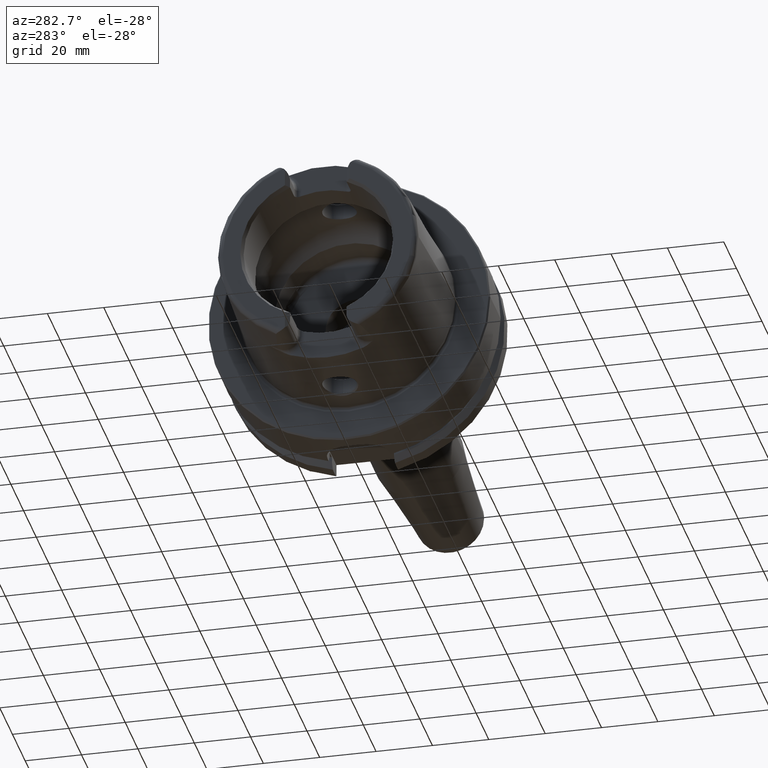
[diagram: clean part render]
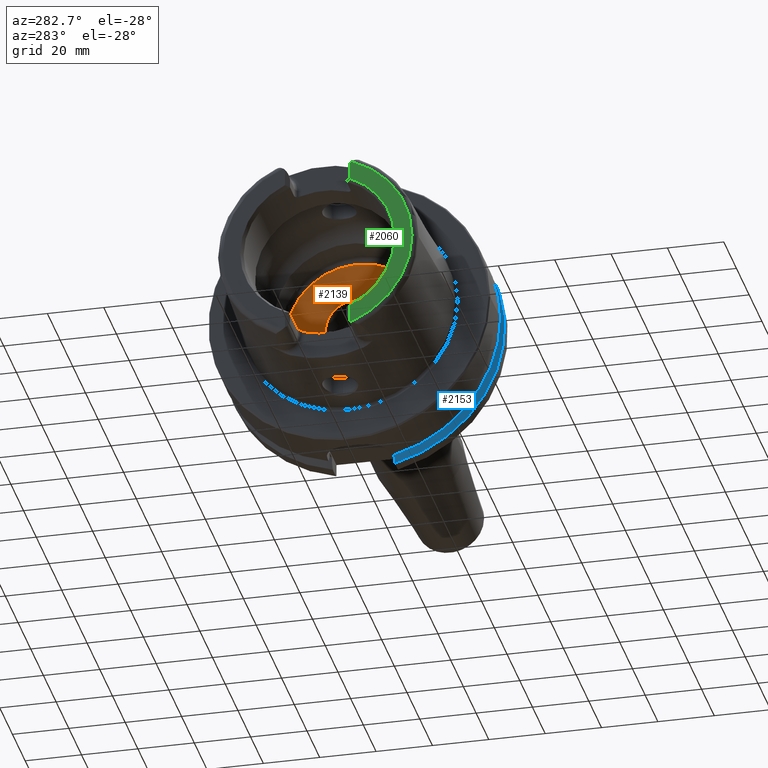
[diagram: same view with three faces highlighted in distinct colors, each labeled with its STEP entity id]
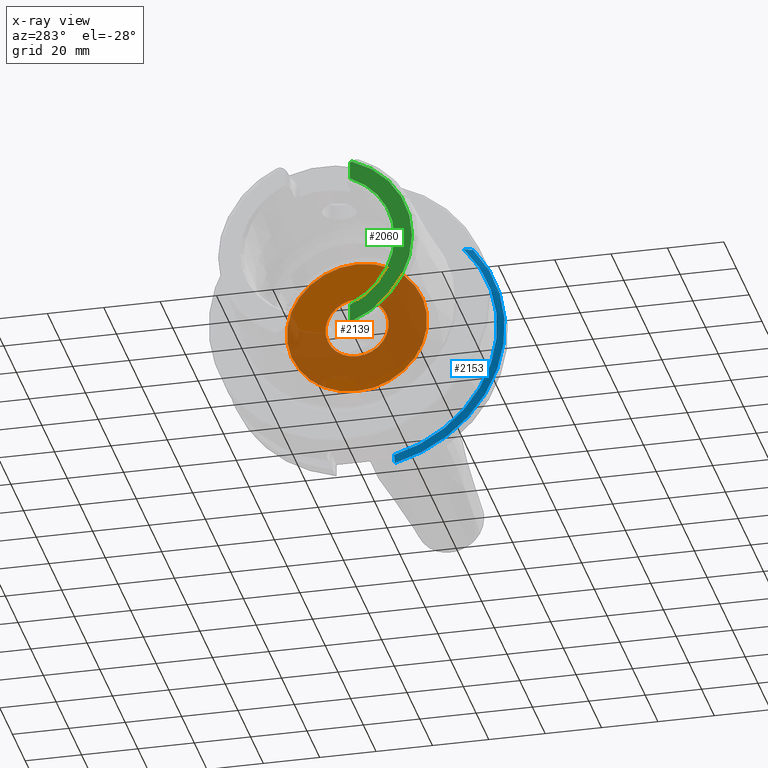
[diagram: x-ray of the same camera — body ghosted, the three highlighted faces saturated]
A machine part, auxiliary view with three faces highlighted in distinct colors.
The next image is the same camera in x-ray (body ghosted, the three faces saturated) — at least one of them is partly hidden behind the body in this view.
Their STEP definitions:

[orange] entity #2139 — the highlighted planar face has unit normal (1, 0, 0).
#96=FACE_BOUND('',#452,.T.);
#132=PLANE('',#2412);
#317=FACE_OUTER_BOUND('',#451,.T.);
#451=EDGE_LOOP('',(#1937));
#452=EDGE_LOOP('',(#1938));
#799=CIRCLE('',#2401,11.188101);
#806=CIRCLE('',#2413,24.9);
#1021=VERTEX_POINT('',#4567);
#1027=VERTEX_POINT('',#4587);
#1329=EDGE_CURVE('',#1021,#1021,#799,.T.);
#1338=EDGE_CURVE('',#1027,#1027,#806,.T.);
#1937=ORIENTED_EDGE('',*,*,#1338,.T.);
#1938=ORIENTED_EDGE('',*,*,#1329,.T.);
#2139=ADVANCED_FACE('',(#317,#96),#132,.F.);
#2401=AXIS2_PLACEMENT_3D('',#4568,#2995,#2996);
#2412=AXIS2_PLACEMENT_3D('',#4586,#3019,#3020);
#2413=AXIS2_PLACEMENT_3D('',#4588,#3021,#3022);
#2995=DIRECTION('center_axis',(1.,0.,0.));
#2996=DIRECTION('ref_axis',(0.,0.,1.));
#3019=DIRECTION('center_axis',(1.,0.,0.));
#3020=DIRECTION('ref_axis',(0.,0.,-1.));
#3021=DIRECTION('center_axis',(-1.,0.,0.));
#3022=DIRECTION('ref_axis',(0.,0.,1.));
#4567=CARTESIAN_POINT('',(12.5,-1.37014720781873E-15,-11.188101));
#4568=CARTESIAN_POINT('Origin',(12.5,0.,0.));
#4586=CARTESIAN_POINT('Origin',(12.5,24.9,0.));
#4587=CARTESIAN_POINT('',(12.5,-3.04937052987691E-15,-24.9));
#4588=CARTESIAN_POINT('Origin',(12.5,0.,0.));

[blue] entity #2153 — the highlighted conical surface has half-angle 60 deg.
#20=(
BOUNDED_CURVE()
B_SPLINE_CURVE(2,(#4108,#4109,#4110),.UNSPECIFIED.,.F.,.F.)
B_SPLINE_CURVE_WITH_KNOTS((3,3),(0.,0.343884390880419),.UNSPECIFIED.)
CURVE()
GEOMETRIC_REPRESENTATION_ITEM()
RATIONAL_B_SPLINE_CURVE((1.,1.00052016257005,1.))
REPRESENTATION_ITEM('')
);
#25=(
BOUNDED_CURVE()
B_SPLINE_CURVE(2,(#4323,#4324,#4325),.UNSPECIFIED.,.F.,.F.)
B_SPLINE_CURVE_WITH_KNOTS((3,3),(0.,0.28292349080556),.UNSPECIFIED.)
CURVE()
GEOMETRIC_REPRESENTATION_ITEM()
RATIONAL_B_SPLINE_CURVE((1.,1.0003193410929,1.))
REPRESENTATION_ITEM('')
);
#331=FACE_OUTER_BOUND('',#467,.T.);
#467=EDGE_LOOP('',(#1998,#1999,#2000,#2001));
#770=CIRCLE('',#2337,50.);
#822=CIRCLE('',#2442,47.5975952641917);
#954=VERTEX_POINT('',#4105);
#955=VERTEX_POINT('',#4107);
#989=VERTEX_POINT('',#4320);
#990=VERTEX_POINT('',#4322);
#1207=EDGE_CURVE('',#955,#954,#20,.T.);
#1257=EDGE_CURVE('',#990,#989,#25,.T.);
#1273=EDGE_CURVE('',#955,#989,#770,.T.);
#1358=EDGE_CURVE('',#954,#990,#822,.T.);
#1998=ORIENTED_EDGE('',*,*,#1207,.T.);
#1999=ORIENTED_EDGE('',*,*,#1358,.T.);
#2000=ORIENTED_EDGE('',*,*,#1257,.T.);
#2001=ORIENTED_EDGE('',*,*,#1273,.F.);
#2032=CONICAL_SURFACE('',#2443,48.7987976320958,1.0471975511966);
#2153=ADVANCED_FACE('',(#331),#2032,.T.);
#2337=AXIS2_PLACEMENT_3D('',#4385,#2849,#2850);
#2442=AXIS2_PLACEMENT_3D('',#4629,#3083,#3084);
#2443=AXIS2_PLACEMENT_3D('',#4630,#3085,#3086);
#2849=DIRECTION('center_axis',(1.,0.,0.));
#2850=DIRECTION('ref_axis',(0.,0.,-1.));
#3083=DIRECTION('center_axis',(1.,0.,0.));
#3084=DIRECTION('ref_axis',(0.,0.,-1.));
#3085=DIRECTION('center_axis',(1.,0.,0.));
#3086=DIRECTION('ref_axis',(0.,-0.951449961441176,-0.307803461438603));
#4105=CARTESIAN_POINT('',(21.875,-35.6830642593065,31.5));
#4107=CARTESIAN_POINT('',(23.2620290209214,-38.8297566307078,31.5));
#4108=CARTESIAN_POINT('Ctrl Pts',(23.2620290209214,-38.8297566307078,31.5));
#4109=CARTESIAN_POINT('Ctrl Pts',(22.5392272442767,-37.2176818849707,31.5));
#4110=CARTESIAN_POINT('Ctrl Pts',(21.875,-35.6830642593065,31.5));
#4320=CARTESIAN_POINT('',(23.2620290209214,-11.,-48.7749935930288));
#4322=CARTESIAN_POINT('',(21.875,-11.,-46.3090819919138));
#4323=CARTESIAN_POINT('Ctrl Pts',(21.875,-11.,-46.3090819919138));
#4324=CARTESIAN_POINT('Ctrl Pts',(22.5505288964237,-11.,-47.5116880808802));
#4325=CARTESIAN_POINT('Ctrl Pts',(23.2620290209214,-11.,-48.7749935930288));
#4385=CARTESIAN_POINT('Origin',(23.2620290209214,0.,0.));
#4629=CARTESIAN_POINT('Origin',(21.875,0.,0.));
#4630=CARTESIAN_POINT('Origin',(22.5685145104607,0.,0.));

[green] entity #2060 — the highlighted planar face has unit normal (-1, 0, 0).
#105=PLANE('',#2252);
#238=FACE_OUTER_BOUND('',#367,.T.);
#367=EDGE_LOOP('',(#1488,#1489,#1490,#1491,#1492,#1493));
#497=LINE('',#3280,#605);
#499=LINE('',#3299,#607);
#605=VECTOR('',#2611,10.);
#607=VECTOR('',#2633,10.);
#723=CIRCLE('',#2248,27.3660254037844);
#726=CIRCLE('',#2253,4.88);
#727=CIRCLE('',#2254,33.6001839277785);
#728=CIRCLE('',#2255,4.88);
#879=VERTEX_POINT('',#3277);
#880=VERTEX_POINT('',#3279);
#882=VERTEX_POINT('',#3285);
#885=VERTEX_POINT('',#3293);
#886=VERTEX_POINT('',#3295);
#887=VERTEX_POINT('',#3297);
#1108=EDGE_CURVE('',#879,#880,#497,.T.);
#1111=EDGE_CURVE('',#880,#882,#723,.T.);
#1115=EDGE_CURVE('',#879,#885,#726,.T.);
#1116=EDGE_CURVE('',#886,#885,#727,.T.);
#1117=EDGE_CURVE('',#886,#887,#728,.T.);
#1118=EDGE_CURVE('',#882,#887,#499,.T.);
#1488=ORIENTED_EDGE('',*,*,#1108,.F.);
#1489=ORIENTED_EDGE('',*,*,#1115,.T.);
#1490=ORIENTED_EDGE('',*,*,#1116,.F.);
#1491=ORIENTED_EDGE('',*,*,#1117,.T.);
#1492=ORIENTED_EDGE('',*,*,#1118,.F.);
#1493=ORIENTED_EDGE('',*,*,#1111,.F.);
#2060=ADVANCED_FACE('',(#238),#105,.T.);
#2248=AXIS2_PLACEMENT_3D('',#3286,#2617,#2618);
#2252=AXIS2_PLACEMENT_3D('',#3292,#2625,#2626);
#2253=AXIS2_PLACEMENT_3D('',#3294,#2627,#2628);
#2254=AXIS2_PLACEMENT_3D('',#3296,#2629,#2630);
#2255=AXIS2_PLACEMENT_3D('',#3298,#2631,#2632);
#2611=DIRECTION('',(0.,0.,1.));
#2617=DIRECTION('center_axis',(-1.,0.,0.));
#2618=DIRECTION('ref_axis',(0.,-1.,0.));
#2625=DIRECTION('center_axis',(-1.,0.,0.));
#2626=DIRECTION('ref_axis',(0.,0.,1.));
#2627=DIRECTION('center_axis',(-1.,0.,0.));
#2628=DIRECTION('ref_axis',(0.,-1.,0.));
#2629=DIRECTION('center_axis',(1.,0.,0.));
#2630=DIRECTION('ref_axis',(0.,0.,-1.));
#2631=DIRECTION('center_axis',(-1.,0.,0.));
#2632=DIRECTION('ref_axis',(0.,0.477884921181369,-0.878422450821629));
#2633=DIRECTION('',(0.,0.,1.));
#3277=CARTESIAN_POINT('',(-50.,-11.51,-30.8899431813596));
#3279=CARTESIAN_POINT('',(-50.,-11.51,-24.8277918148307));
#3280=CARTESIAN_POINT('',(-50.,-11.51,-13.685));
#3285=CARTESIAN_POINT('',(-50.,-11.51,24.8277918148307));
#3286=CARTESIAN_POINT('Origin',(-50.,0.,0.));
#3292=CARTESIAN_POINT('Origin',(-50.,33.6001839277785,0.));
#3293=CARTESIAN_POINT('',(-50.,-12.0743049948301,-31.355757348091));
#3294=CARTESIAN_POINT('Origin',(-50.,-14.89,-27.37));
#3295=CARTESIAN_POINT('',(-50.,-12.0743049948301,31.355757348091));
#3296=CARTESIAN_POINT('Origin',(-50.,0.,0.));
#3297=CARTESIAN_POINT('',(-50.,-11.51,30.8899431813596));
#3298=CARTESIAN_POINT('Origin',(-50.,-14.89,27.37));
#3299=CARTESIAN_POINT('',(-50.,-11.51,9.));